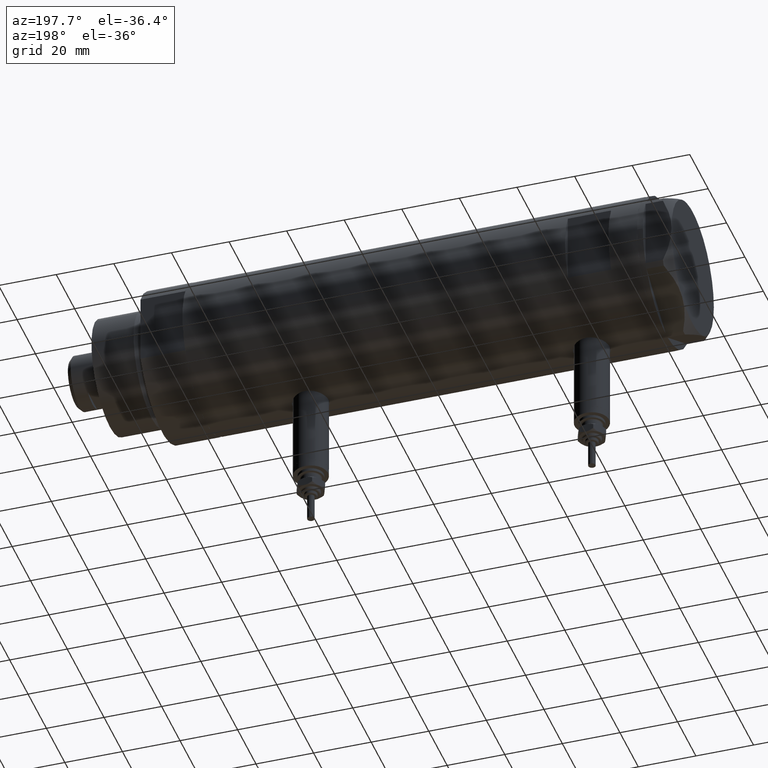
[diagram: clean part render]
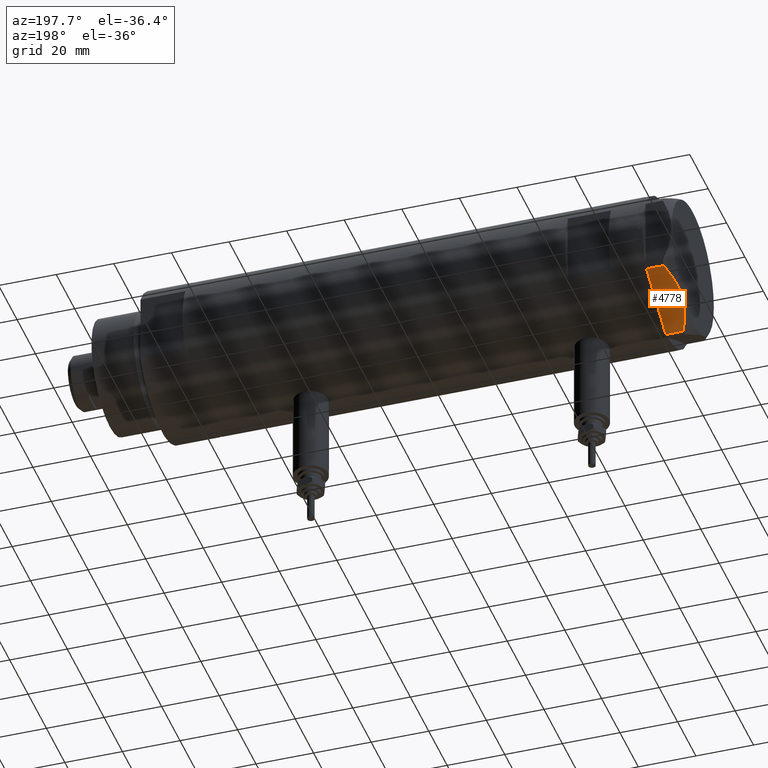
[diagram: same view with one face highlighted and labeled with its STEP entity id]
A machine part, auxiliary view. The second image highlights one B-rep face of the part: STEP entity #4778.
In plain terms, the highlighted planar face has unit normal (0, -0.5, 0.866).
Its self-contained STEP definition (entity closure, byte-faithful):
#276 = PLANE ( 'NONE',  #4205 ) ;
#290 = VECTOR ( 'NONE', #5042, 999.9999999999998863 ) ;
#352 = CARTESIAN_POINT ( 'NONE',  ( 0.9999999999999297229, 25.98076211353316722, 0.000000000000000000 ) ) ;
#405 = CARTESIAN_POINT ( 'NONE',  ( 21.99999999999987210, 13.85640646055121827, 0.000000000000000000 ) ) ;
#468 = CARTESIAN_POINT ( 'NONE',  ( 22.03005154776124286, 13.83905619136163168, 9.000000000000000000 ) ) ;
#511 = EDGE_CURVE ( 'NONE', #3984, #2610, #1100, .T. ) ;
#566 = CARTESIAN_POINT ( 'NONE',  ( 22.99999999999981171, 13.27905619136164184, 0.000000000000000000 ) ) ;
#619 = VERTEX_POINT ( 'NONE', #352 ) ;
#718 = VERTEX_POINT ( 'NONE', #2361 ) ;
#769 = CARTESIAN_POINT ( 'NONE',  ( 11.49999999999990408, 19.91858428704219364, 9.000000000000000000 ) ) ;
#876 = CARTESIAN_POINT ( 'NONE',  ( 2.640413878806739945, 25.03366871902167290, 6.844201024438365089 ) ) ;
#887 = CARTESIAN_POINT ( 'NONE',  ( 0.9699484522385767304, 25.99811238272274849, 5.983800287807627960 ) ) ;
#1040 = VERTEX_POINT ( 'NONE', #405 ) ;
#1100 = B_SPLINE_CURVE_WITH_KNOTS ( 'NONE', 3,
 ( #3198, #1727, #5085, #5626, #3646, #2654, #5597, #3104, #4659, #769 ),
 .UNSPECIFIED., .F., .F.,
 ( 4, 2, 2, 2, 4 ),
 ( 0.001228959670438493522, 0.007497079744270714746, 0.01063113978118682655, 0.01219816979964488159, 0.01376519981810293489 ),
 .UNSPECIFIED. ) ;
#1236 = EDGE_CURVE ( 'NONE', #1040, #619, #1974, .T. ) ;
#1330 = CARTESIAN_POINT ( 'NONE',  ( 22.03005154776138852, 13.83905619136154819, 5.983800287807532037 ) ) ;
#1342 = B_SPLINE_CURVE_WITH_KNOTS ( 'NONE', 3,
 ( #4292, #1389, #2379, #2283, #3328, #3880, #5259, #876, #2342, #3783 ),
 .UNSPECIFIED., .F., .F.,
 ( 4, 2, 2, 2, 4 ),
 ( 0.01376519981810293489, 0.01998941321701561136, 0.02154546656674377961, 0.02310151991647194786, 0.02621362661592828783 ),
 .UNSPECIFIED. ) ;
#1389 = CARTESIAN_POINT ( 'NONE',  ( 9.678244919010086988, 20.97037507344920826, 9.000000000000001776 ) ) ;
#1391 = LINE ( 'NONE', #468, #6244 ) ;
#1455 = DIRECTION ( 'NONE',  ( 0.000000000000000000, 0.000000000000000000, -1.000000000000000000 ) ) ;
#1464 = EDGE_CURVE ( 'NONE', #619, #718, #5995, .T. ) ;
#1673 = ORIENTED_EDGE ( 'NONE', *, *, #1236, .T. ) ;
#1719 = DIRECTION ( 'NONE',  ( -0.8660254037844415942, 0.4999999999999949485, 0.000000000000000000 ) ) ;
#1727 = CARTESIAN_POINT ( 'NONE',  ( 20.37350567916420019, 14.79546339452108050, 6.877782426143415506 ) ) ;
#1783 = CARTESIAN_POINT ( 'NONE',  ( 22.99999999999981171, 13.27905619136164184, 9.000000000000000000 ) ) ;
#1806 = DIRECTION ( 'NONE',  ( 0.8660254037844415942, -0.4999999999999949485, 0.000000000000000000 ) ) ;
#1974 = LINE ( 'NONE', #566, #3337 ) ;
#2034 = ORIENTED_EDGE ( 'NONE', *, *, #511, .F. ) ;
#2144 = VERTEX_POINT ( 'NONE', #2494 ) ;
#2227 = LINE ( 'NONE', #6100, #4691 ) ;
#2277 = DIRECTION ( 'NONE',  ( 0.000000000000000000, 0.000000000000000000, 1.000000000000000000 ) ) ;
#2283 = CARTESIAN_POINT ( 'NONE',  ( 5.671686373602799591, 23.28356272816407824, 8.040681765829278405 ) ) ;
#2286 = FACE_OUTER_BOUND ( 'NONE', #3922, .T. ) ;
#2342 = CARTESIAN_POINT ( 'NONE',  ( 1.799196345396824492, 25.51934588838292228, 6.431317509509382191 ) ) ;
#2361 = CARTESIAN_POINT ( 'NONE',  ( 0.9699484522385816154, 25.99811238272274494, 0.000000000000000000 ) ) ;
#2379 = CARTESIAN_POINT ( 'NONE',  ( 7.884645426989626671, 22.00591022298560517, 8.707651728476925257 ) ) ;
#2494 = CARTESIAN_POINT ( 'NONE',  ( 22.03005154776124286, 13.83905619136163168, 0.000000000000000000 ) ) ;
#2510 = DIRECTION ( 'NONE',  ( -0.8660254037844415942, 0.4999999999999949485, 0.000000000000000000 ) ) ;
#2610 = VERTEX_POINT ( 'NONE', #4265 ) ;
#2654 = CARTESIAN_POINT ( 'NONE',  ( 13.80210138309697498, 18.58946543380931260, 8.852712638955710034 ) ) ;
#2672 = VECTOR ( 'NONE', #2277, 1000.000000000000000 ) ;
#3104 = CARTESIAN_POINT ( 'NONE',  ( 12.41906678023027588, 19.38796083407295967, 8.981686407609410949 ) ) ;
#3198 = CARTESIAN_POINT ( 'NONE',  ( 22.03005154776138852, 13.83905619136154819, 5.983800287807532037 ) ) ;
#3206 = CARTESIAN_POINT ( 'NONE',  ( 0.9699484522385816154, 25.99811238272274494, 9.000000000000000000 ) ) ;
#3328 = CARTESIAN_POINT ( 'NONE',  ( 5.229981517798067081, 23.53858114556529912, 7.892128867758392730 ) ) ;
#3337 = VECTOR ( 'NONE', #2510, 999.9999999999998863 ) ;
#3568 = EDGE_CURVE ( 'NONE', #2144, #1040, #2227, .T. ) ;
#3571 = CARTESIAN_POINT ( 'NONE',  ( 22.99999999999981171, 13.27905619136164184, 0.000000000000000000 ) ) ;
#3646 = CARTESIAN_POINT ( 'NONE',  ( 15.16323225988329959, 17.80361615569442790, 8.637313967156861949 ) ) ;
#3783 = CARTESIAN_POINT ( 'NONE',  ( 0.9699484522385767304, 25.99811238272274849, 5.983800287807627960 ) ) ;
#3880 = CARTESIAN_POINT ( 'NONE',  ( 4.357207709416038632, 24.04247733877631532, 7.570552255229681116 ) ) ;
#3922 = EDGE_LOOP ( 'NONE', ( #2034, #4231, #5313, #1673, #4082, #6256, #5727 ) ) ;
#3925 = EDGE_CURVE ( 'NONE', #2610, #4462, #1342, .T. ) ;
#3984 = VERTEX_POINT ( 'NONE', #1330 ) ;
#4082 = ORIENTED_EDGE ( 'NONE', *, *, #1464, .T. ) ;
#4205 = AXIS2_PLACEMENT_3D ( 'NONE', #1783, #6097, #1806 ) ;
#4231 = ORIENTED_EDGE ( 'NONE', *, *, #4897, .T. ) ;
#4265 = CARTESIAN_POINT ( 'NONE',  ( 11.49999999999990408, 19.91858428704219364, 9.000000000000000000 ) ) ;
#4292 = CARTESIAN_POINT ( 'NONE',  ( 11.49999999999990408, 19.91858428704219364, 9.000000000000000000 ) ) ;
#4462 = VERTEX_POINT ( 'NONE', #887 ) ;
#4659 = CARTESIAN_POINT ( 'NONE',  ( 11.95865151389051917, 19.65378171203322566, 9.000000000000005329 ) ) ;
#4691 = VECTOR ( 'NONE', #1719, 999.9999999999998863 ) ;
#4778 = ADVANCED_FACE ( 'NONE', ( #2286 ), #276, .F. ) ;
#4897 = EDGE_CURVE ( 'NONE', #3984, #2144, #1391, .T. ) ;
#5042 = DIRECTION ( 'NONE',  ( -0.8660254037844415942, 0.4999999999999949485, 0.000000000000000000 ) ) ;
#5085 = CARTESIAN_POINT ( 'NONE',  ( 18.67981377008996446, 15.77331687414937278, 7.629374868826049649 ) ) ;
#5244 = EDGE_CURVE ( 'NONE', #718, #4462, #5666, .T. ) ;
#5259 = CARTESIAN_POINT ( 'NONE',  ( 3.925137811030050994, 24.29193301091819635, 7.397272853991373687 ) ) ;
#5313 = ORIENTED_EDGE ( 'NONE', *, *, #3568, .T. ) ;
#5597 = CARTESIAN_POINT ( 'NONE',  ( 13.34348161667005073, 18.85424967941157703, 8.907842277728345692 ) ) ;
#5626 = CARTESIAN_POINT ( 'NONE',  ( 16.05322244309623869, 17.28978008384030929, 8.426899937603700153 ) ) ;
#5666 = LINE ( 'NONE', #3206, #2672 ) ;
#5727 = ORIENTED_EDGE ( 'NONE', *, *, #3925, .F. ) ;
#5995 = LINE ( 'NONE', #3571, #290 ) ;
#6097 = DIRECTION ( 'NONE',  ( -0.4999999999999949485, -0.8660254037844415942, 0.000000000000000000 ) ) ;
#6100 = CARTESIAN_POINT ( 'NONE',  ( 22.99999999999981171, 13.27905619136164184, 0.000000000000000000 ) ) ;
#6244 = VECTOR ( 'NONE', #1455, 1000.000000000000000 ) ;
#6256 = ORIENTED_EDGE ( 'NONE', *, *, #5244, .T. ) ;